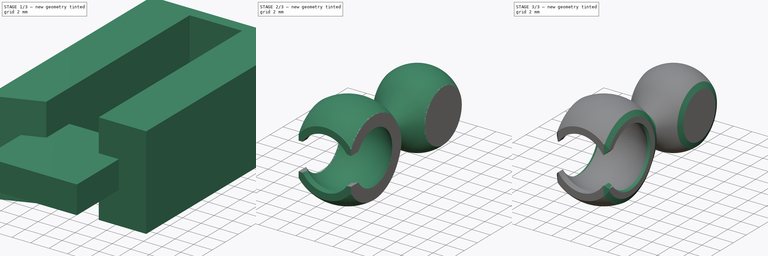
[diagram: build sequence overview — one tinted view per stage of 3, left to right]
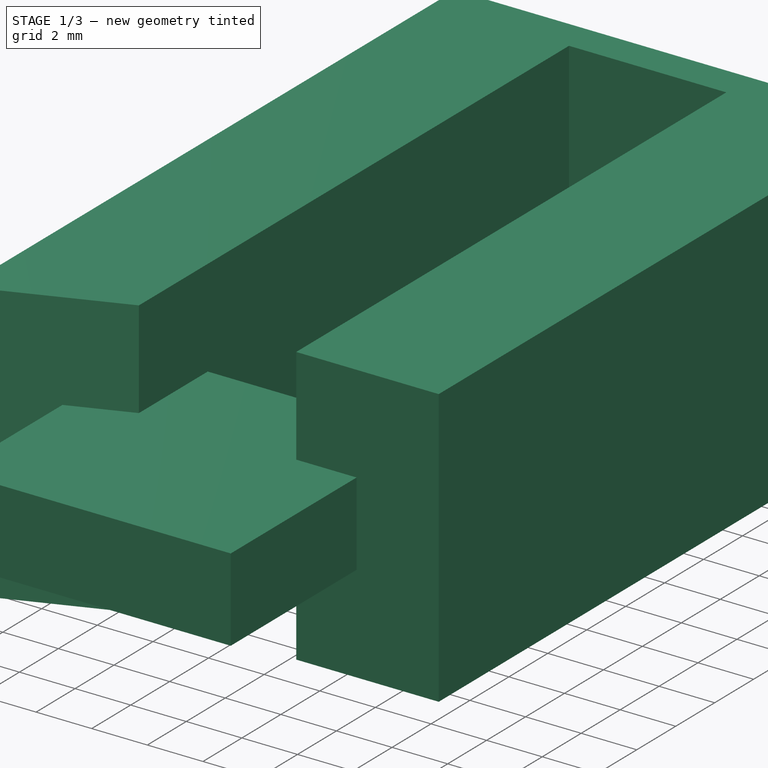
[diagram: stage 1 of 3 — iso view after this stage's code; geometry added in this stage tinted green]
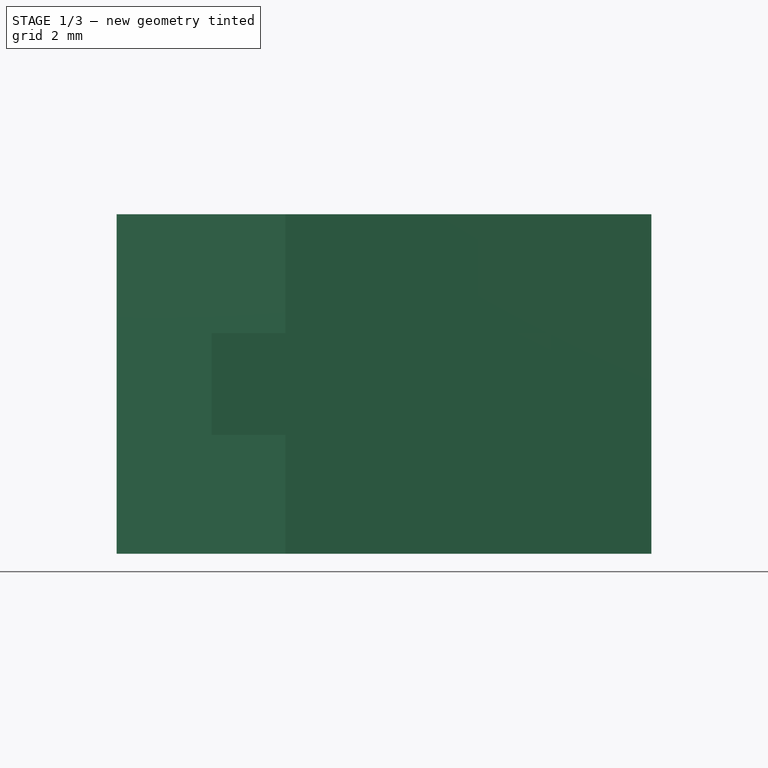
[diagram: stage 1 of 3 — front view after this stage's code; geometry added in this stage tinted green]
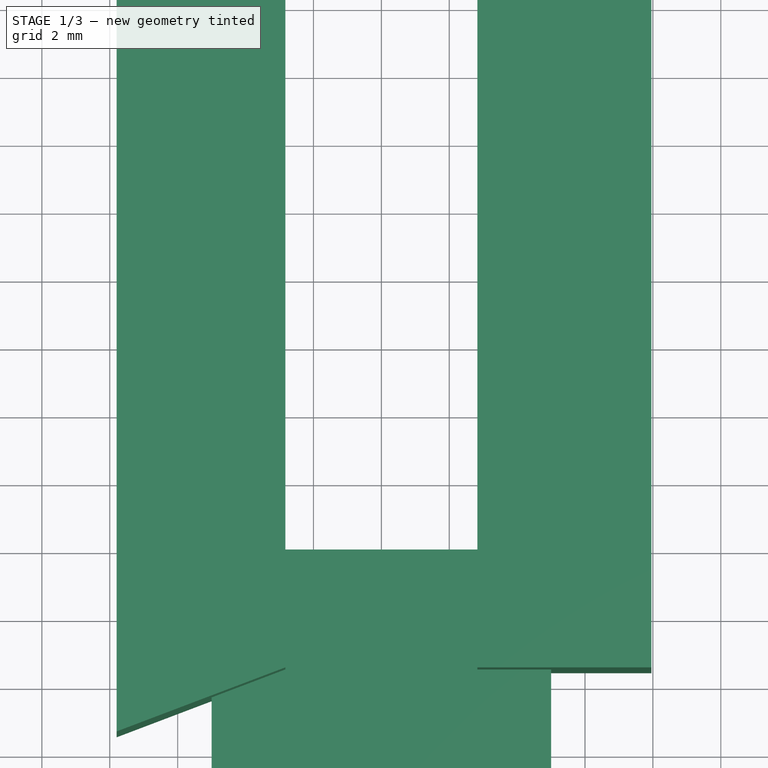
[diagram: stage 1 of 3 — top view after this stage's code; geometry added in this stage tinted green]
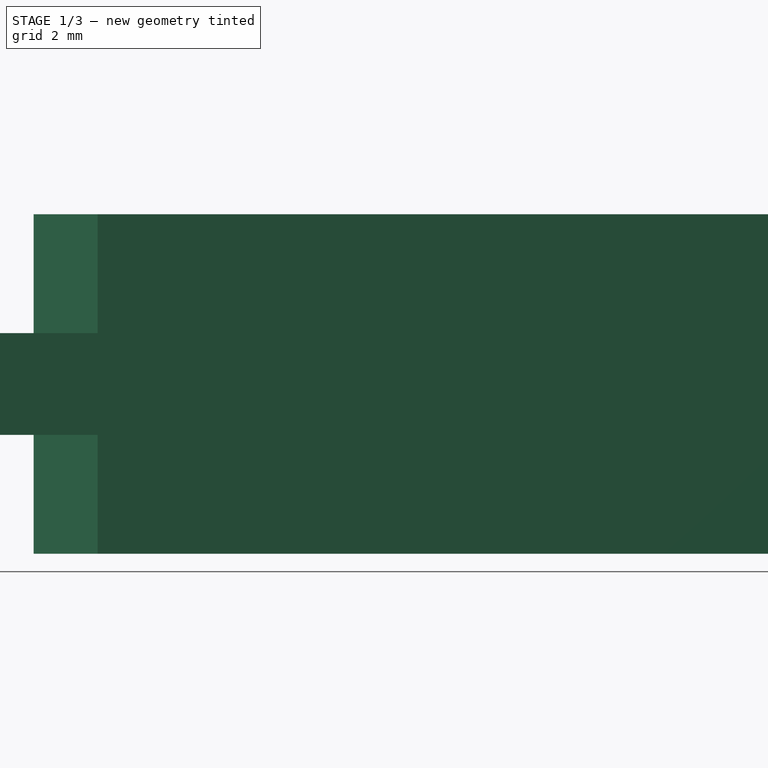
[diagram: stage 1 of 3 — right view after this stage's code; geometry added in this stage tinted green]
FCSTD DOCUMENT  (FreeCAD 0.21R33771 (Git))
Label: BallSocketJoint
License: All rights reserved
LicenseURL: http://en.wikipedia.org/wiki/All_rights_reserved
objects: Sketcher::SketchObject×2, Part::Cut×2, Part::Chamfer×2, Part::Revolution×1, Part::Extrusion×1, Part::Box×1
note: 9 computed .brp shape members not serialized (recipe doc carries the construction recipe); baked Part::Feature solids carry a one-line shape summary decoded from their .brp

FEATURE [Sketcher::SketchObject] Sketch001  label="BottomTopSketch"
  FullyConstrained = false
  sketch-geometry (12):
    g0: Circle CenterX=0 CenterY=0 CenterZ=0 NormalX=0 NormalY=0 NormalZ=1 AngleXU=0 Radius=4
    g1: LineSegment StartX=0 StartY=0 StartZ=0 EndX=2.82843 EndY=-2.82843 EndZ=0
    g2: LineSegment StartX=2.82843 StartY=-2.82843 StartZ=0 EndX=3.53553 EndY=-3.53553 EndZ=0
    g3: LineSegment StartX=3.53553 StartY=-3.53553 StartZ=0 EndX=0 EndY=-3.53553 EndZ=0
    g4: LineSegment StartX=7.95303 StartY=-3.53553 StartZ=0 EndX=7.95303 EndY=19.8015 EndZ=0
    g5: LineSegment StartX=7.95303 StartY=19.8015 StartZ=0 EndX=-7.79652 EndY=19.8015 EndZ=0
    g6: LineSegment StartX=-7.79652 StartY=19.8015 StartZ=0 EndX=-7.79652 EndY=-5.42188 EndZ=0
    g7: LineSegment StartX=2.82843 StartY=-3.53553 StartZ=0 EndX=2.82843 EndY=18.5538 EndZ=0
    g8: LineSegment StartX=-2.82843 StartY=-3.53553 StartZ=0 EndX=-2.82843 EndY=18.5538 EndZ=0
    g9: LineSegment StartX=2.82843 StartY=-3.53553 StartZ=0 EndX=7.95303 EndY=-3.53553 EndZ=0
    g10: LineSegment StartX=-2.82843 StartY=-3.53553 StartZ=0 EndX=-7.79652 EndY=-5.42188 EndZ=0
    g11: LineSegment StartX=2.82843 StartY=18.5538 StartZ=0 EndX=-2.82843 EndY=18.5538 EndZ=0
  constraints (28):
    c: Radius(g0) = 4
    c: Coincident(g0,g-1)
    c: Coincident(g1,g0)
    c: PointOnObject(g1,g0)
    c: Angle(g1,g-2,g0) = 2.35619
    c: Coincident(g2,g1)
    c: Parallel(g1,g2)
    c: Distance(g2) = 1
    c: Coincident(g3,g2)
    c: PointOnObject(g3,g-2)
    c: Horizontal(g3)
    c: Vertical(g4)
    c: Coincident(g4,g5)
    c: Horizontal(g5)
    c: Coincident(g5,g6)
    c: Vertical(g6)
    c: PointOnObject(g7,g3)
    c: Vertical(g7)
    c: PointOnObject(g1,g7)
    c: Vertical(g8)
    c: Coincident(g9,g7)
    c: Coincident(g9,g4)
    c: Horizontal(g9)
    c: Coincident(g10,g8)
    c: Coincident(g10,g6)
    c: Coincident(g11,g7)
    c: Coincident(g11,g8)
    c: Horizontal(g11)
FEATURE [Part::Extrusion] Extrude
  Base = -> Sketch001
  Dir = (0,0,1)
  DirMode = 2
  FaceMakerClass = Part::FaceMakerBullseye
  LengthFwd = 10
  LengthRev = 0
  Placement = pos=(0,0,-5) rot=(0,0,1;0rad)
  Solid = true
  Symmetric = false
FEATURE [Part::Box] Box  label="Notch"
  AttacherType = Attacher::AttachEngine3D
  Height = 3
  Length = 10
  Placement = pos=(-5,-10,-1.5) rot=(0,0,1;0rad)
  Width = 10
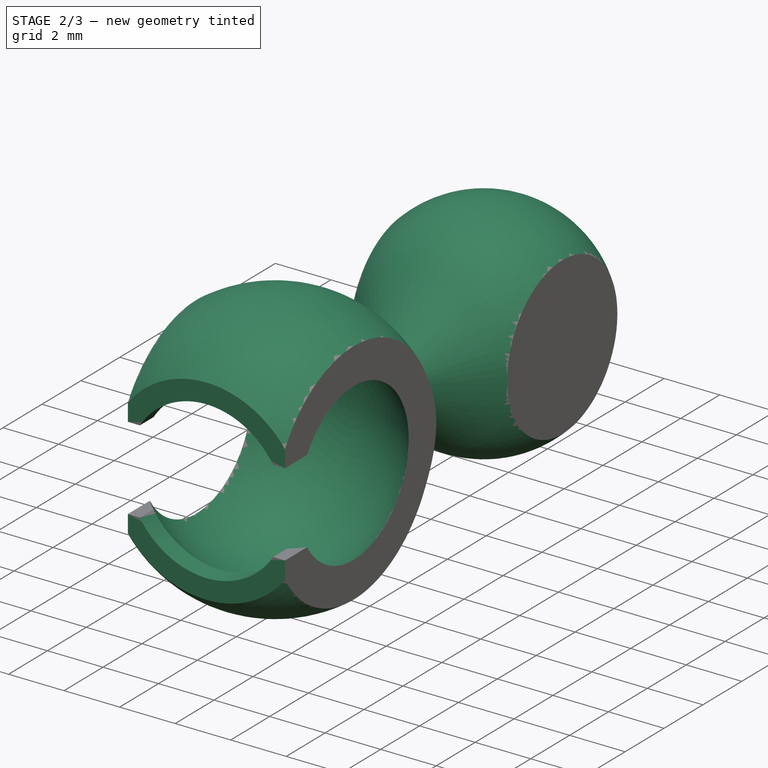
[diagram: stage 2 of 3 — iso view after this stage's code; geometry added in this stage tinted green]
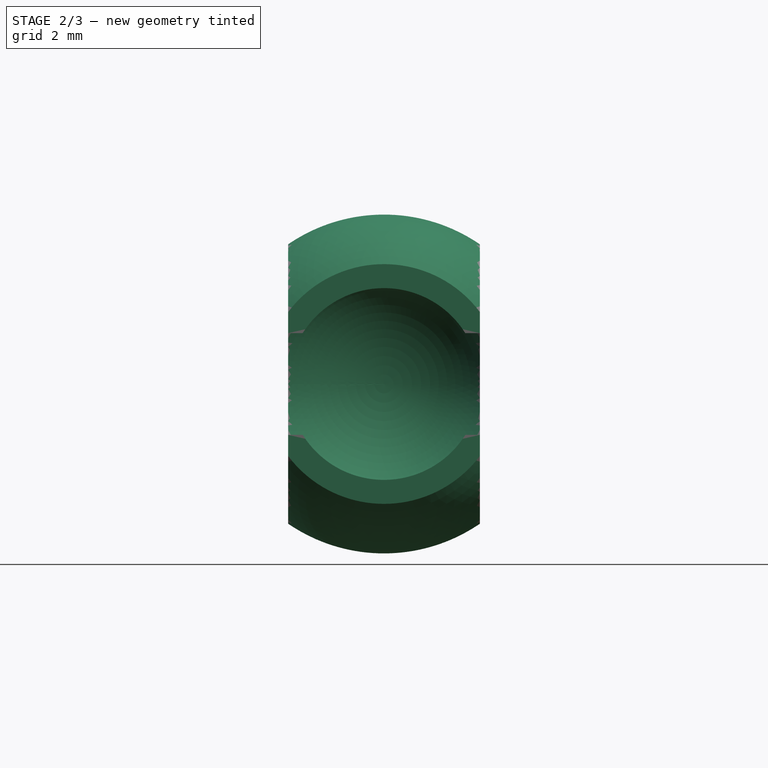
[diagram: stage 2 of 3 — front view after this stage's code; geometry added in this stage tinted green]
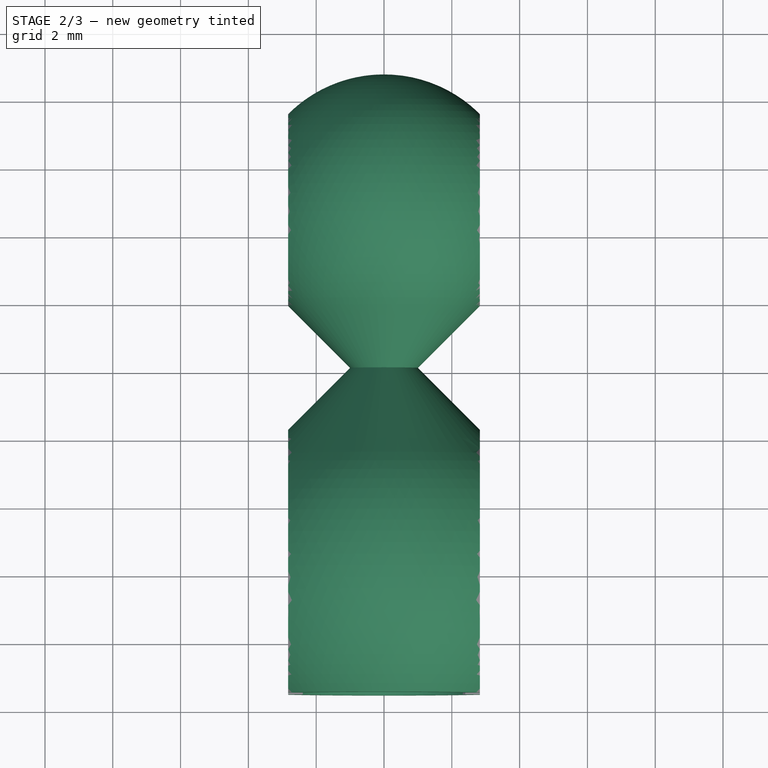
[diagram: stage 2 of 3 — top view after this stage's code; geometry added in this stage tinted green]
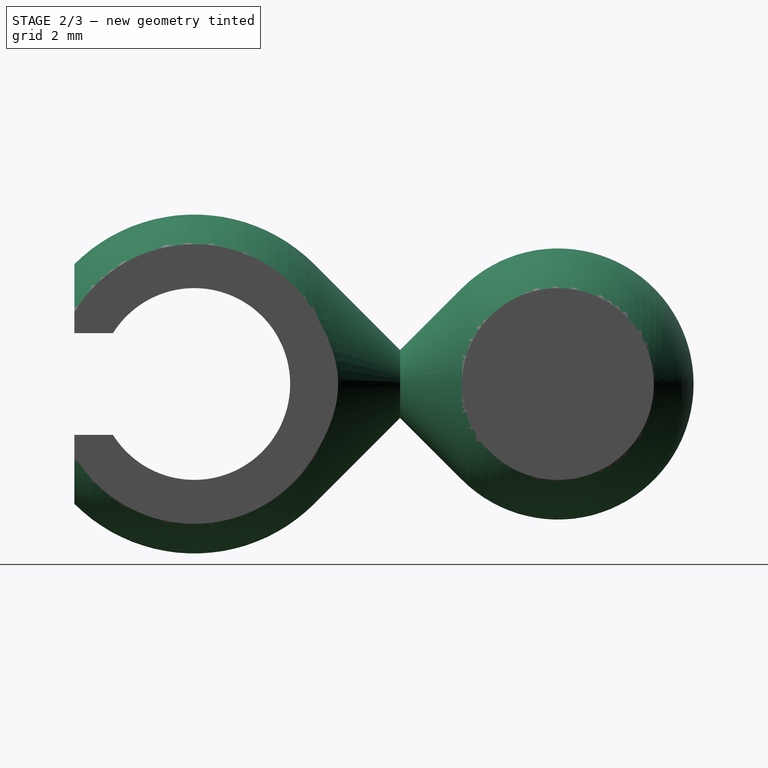
[diagram: stage 2 of 3 — right view after this stage's code; geometry added in this stage tinted green]
FEATURE [Sketcher::SketchObject] Sketch  label="MainBody"
  FullyConstrained = true
  sketch-geometry (10):
    g0: ArcOfCircle CenterX=0 CenterY=0 CenterZ=0 NormalX=0 NormalY=0 NormalZ=1 AngleXU=0 Radius=5 StartAngle=2.35619 EndAngle=3.92699
    g1: LineSegment StartX=-2.82843 StartY=-3.53553 StartZ=0 EndX=-3.53553 EndY=-3.53553 EndZ=0
    g2: ArcOfCircle CenterX=0 CenterY=0 CenterZ=0 NormalX=0 NormalY=0 NormalZ=1 AngleXU=0 Radius=4 StartAngle=1.5708 EndAngle=3.92699
    g3: LineSegment StartX=-3.53553 StartY=-3.53553 StartZ=0 EndX=-2.82843 EndY=-2.82843 EndZ=0
    g4: LineSegment StartX=-2.82843 StartY=-2.82843 StartZ=0 EndX=-2.82843 EndY=-3.53553 EndZ=0
    g5: LineSegment StartX=-3.53553 StartY=3.53553 StartZ=0 EndX=-2.82843 EndY=2.82843 EndZ=0
    g6: LineSegment StartX=-1 StartY=6.07107 StartZ=0 EndX=-2.82843 EndY=7.89949 EndZ=0
    g7: ArcOfCircle CenterX=0 CenterY=10.7279 CenterZ=0 NormalX=0 NormalY=0 NormalZ=1 AngleXU=0 Radius=4 StartAngle=1.5708 EndAngle=3.92699
    g8: LineSegment StartX=2e-16 StartY=14.7279 StartZ=0 EndX=2e-16 EndY=4 EndZ=0
    g9: LineSegment StartX=-3.53553 StartY=3.53553 StartZ=0 EndX=-1 EndY=6.07107 EndZ=0
  constraints (27):
    c: Horizontal(g1)
    c: Angle(g1,g0,g1) = 2.35619
    c: Coincident(g0,g1)
    c: Coincident(g2,g0)
    c: PointOnObject(g2,g-2)
    c: Coincident(g3,g0)
    c: Distance(g3) = 1
    c: Radius(g0) = 5
    c: Coincident(g4,g3)
    c: Vertical(g4)
    c: Perpendicular(g2,g3) = 1.5708
    c: Coincident(g1,g4)
    c: Coincident(g0,g-1)
    c: Coincident(g5,g0)
    c: PointOnObject(g5,g2)
    c: Perpendicular(g2,g5)
    c: Angle(g-2,g5) = 0.785398
    c: PointOnObject(g7,g-2)
    c: PointOnObject(g7,g-2)
    c: Tangent(g7,g6) = 1.5708
    c: Radius(g7) = 4
    c: Coincident(g8,g7)
    c: Coincident(g8,g2)
    c: Tangent(g9,g0) = 1.5708
    c: Coincident(g6,g9)
    c: Perpendicular(g6,g9)
    c: DistanceX(g6,g7) = 1
FEATURE [Part::Revolution] Revolve
  Angle = 360
  Axis = (0,1,0)
  Base = (0,0,0)
  FaceMakerClass = Part::FaceMakerBullseye
  Solid = true
  Source = -> Sketch
  Symmetric = false
FEATURE [Part::Cut] Cut  label="BottomTopFaceCut"
  Base = -> Revolve
  Tool = -> Extrude
FEATURE [Part::Cut] Cut001  label="NotchCut"
  Base = -> Cut
  Tool = -> Box
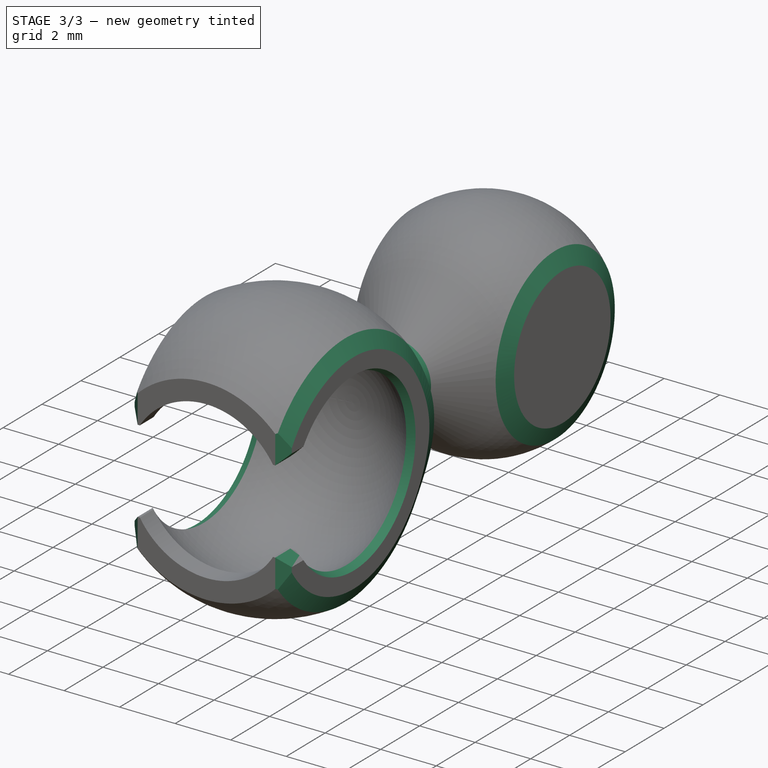
[diagram: stage 3 of 3 — iso view after this stage's code; geometry added in this stage tinted green]
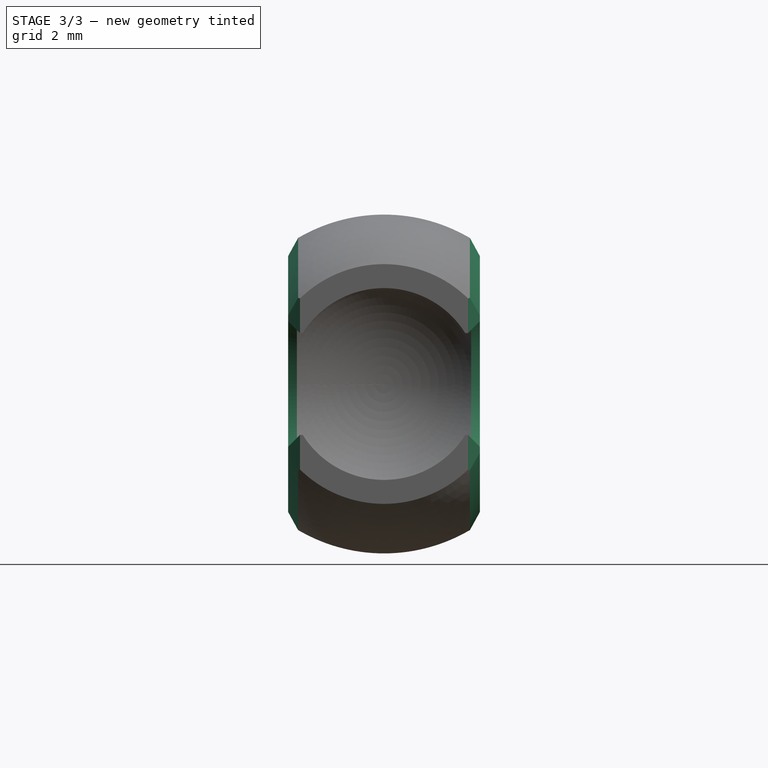
[diagram: stage 3 of 3 — front view after this stage's code; geometry added in this stage tinted green]
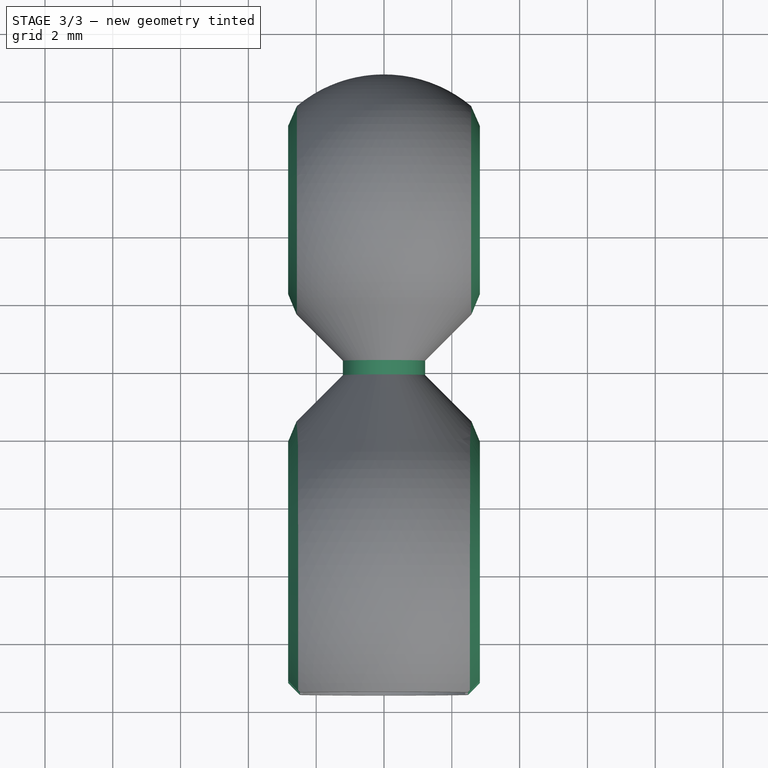
[diagram: stage 3 of 3 — top view after this stage's code; geometry added in this stage tinted green]
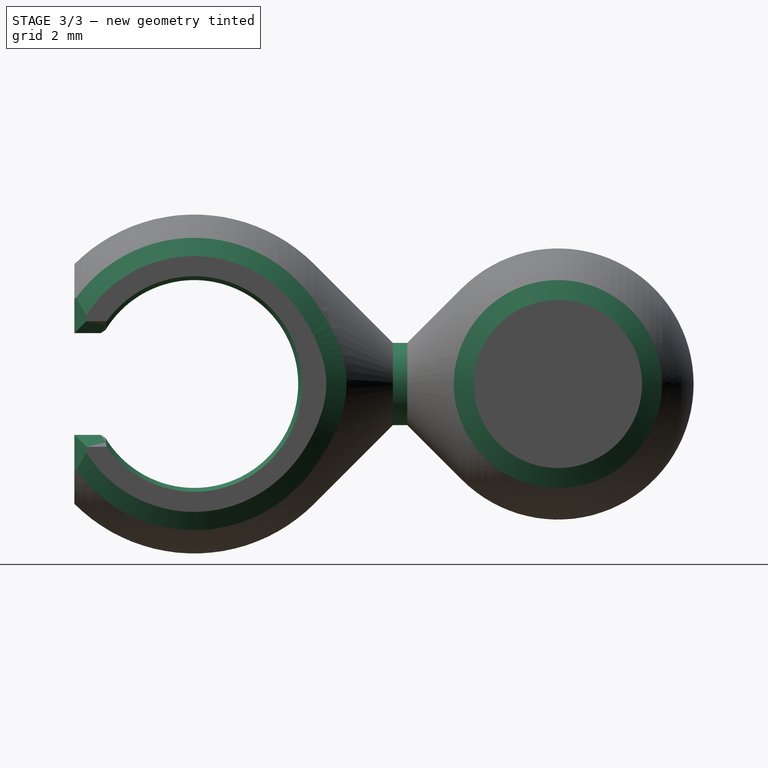
[diagram: stage 3 of 3 — right view after this stage's code; geometry added in this stage tinted green]
FEATURE [Part::Chamfer] Chamfer  label="BottomTopChamfer"
  Base = -> Cut001
  Edges = 21 edges r=0.35: [Edge1,Edge3,Edge5,Edge6,Edge7,Edge8,Edge9,Edge10,Edge11,Edge12,Edge13,Edge14,Edge18,Edge19,Edge20,Edge21,Edge22,Edge23,Edge47,Edge48,Edge50]
FEATURE [Part::Chamfer] Chamfer001  label="ConnectionChamfer"
  Base = -> Chamfer
  Edges = 1 edges r=0.3: [Edge27]
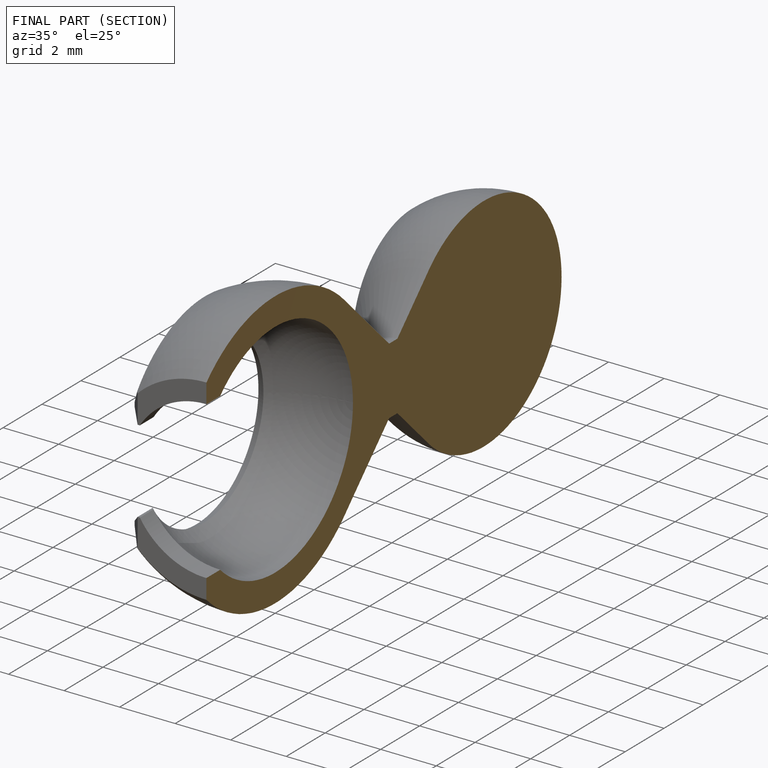
[diagram: finished part — half-section view (interior)]
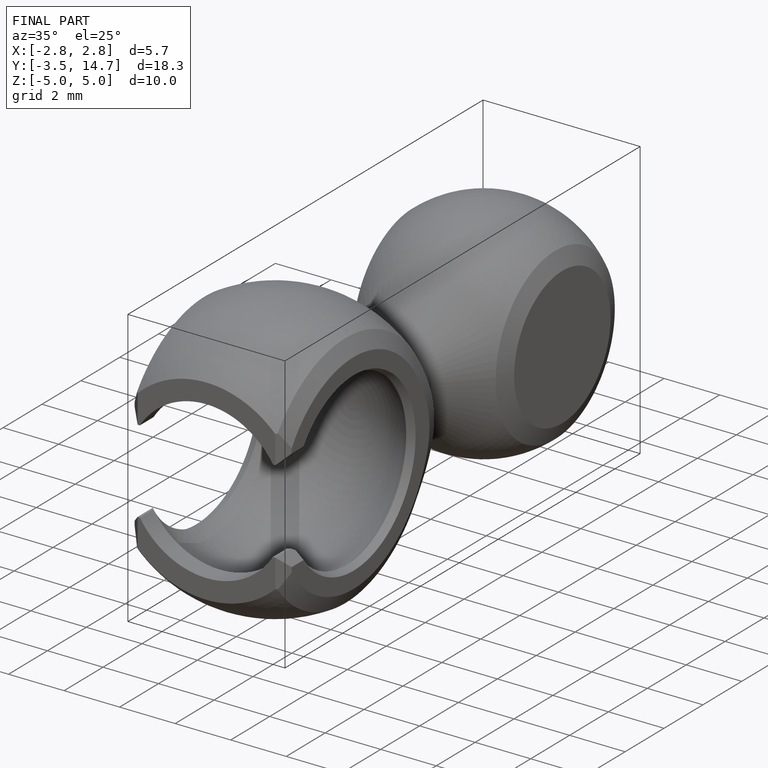
[diagram: finished part — iso view with bounding-box wireframe]
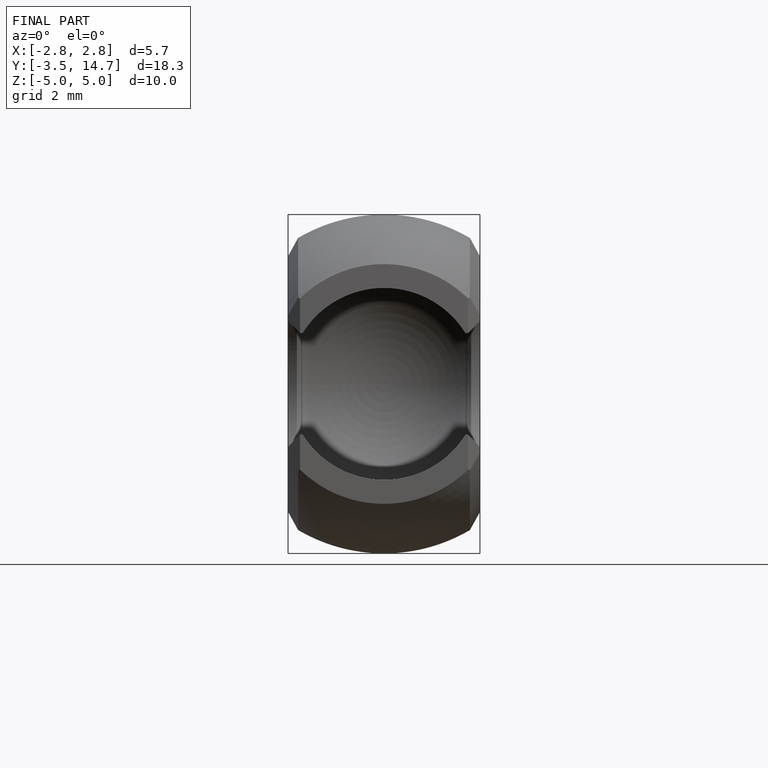
[diagram: finished part — front view with bounding-box wireframe]
